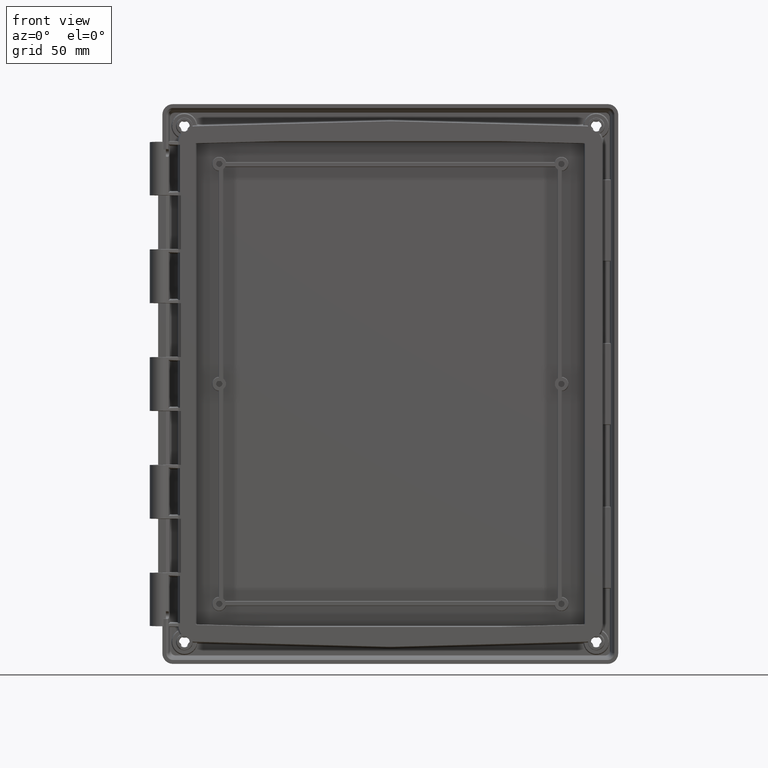
[diagram: clean part render]
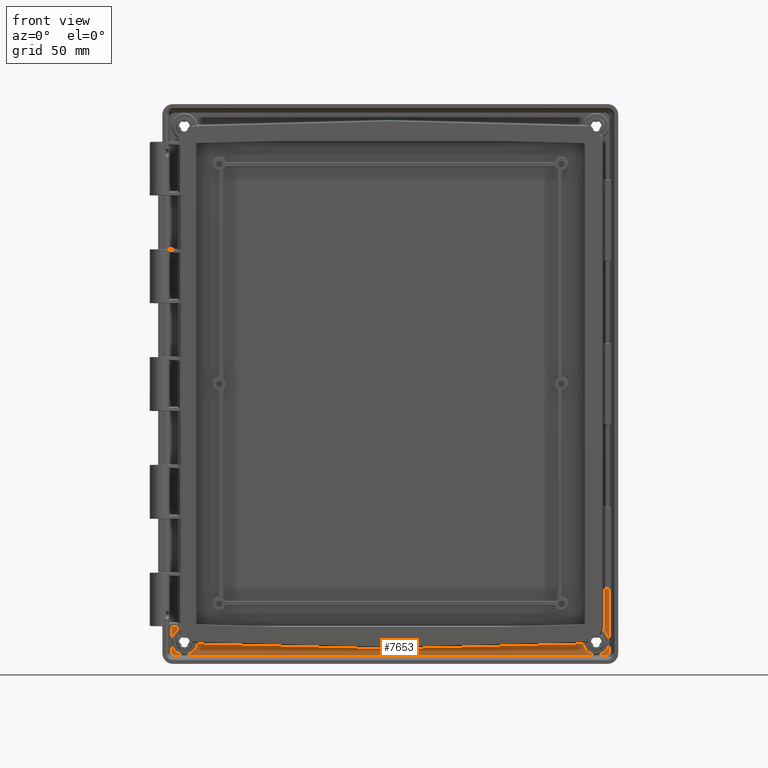
[diagram: same view with one face highlighted and labeled with its STEP entity id]
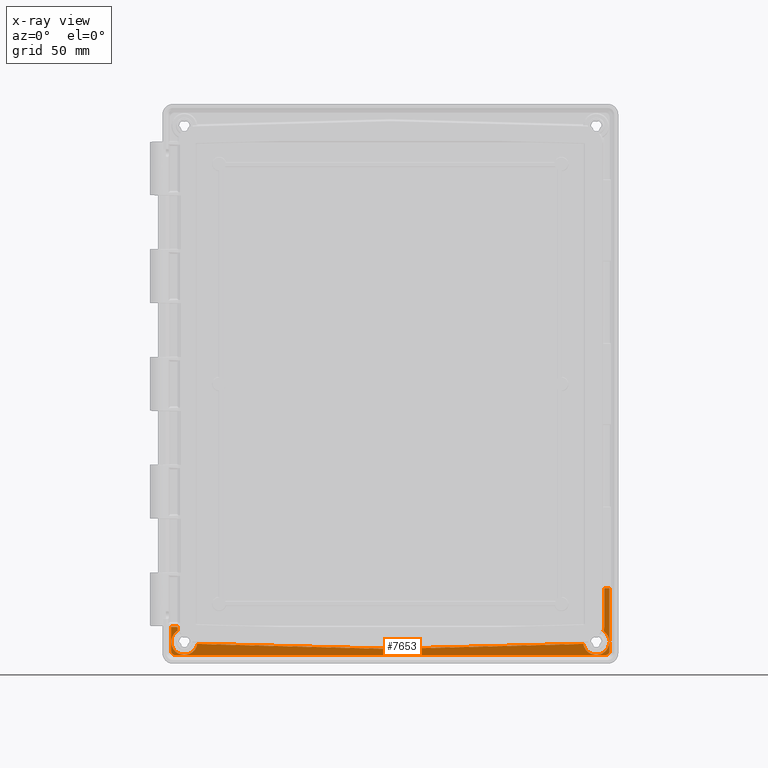
[diagram: x-ray of the same camera — body ghosted, the highlighted face saturated]
A machine part, front view. The second image highlights one B-rep face of the part: STEP entity #7653.
The next image is the same camera in x-ray: the body ghosted, the highlighted face saturated — about 0% of this face is hidden behind the body in this view.
In plain terms, the highlighted planar face has unit normal (0, -1, 0).
Its self-contained STEP definition (entity closure, byte-faithful):
#263=DIRECTION('',(1.028042886248E-13,1.890844213960E-10,1.E0));
#264=VECTOR('',#263,3.262278021325E1);
#265=CARTESIAN_POINT('',(1.138611150675E2,1.259899999383E1,-1.388638559980E2));
#266=LINE('',#265,#264);
#267=CARTESIAN_POINT('',(1.118638559980E2,1.259899999571E1,-1.408611150675E2));
#268=CARTESIAN_POINT('',(1.120793573080E2,1.259899999571E1,-1.408612454352E2));
#269=CARTESIAN_POINT('',(1.124875418561E2,1.259900000193E1,-1.407953485433E2));
#270=CARTESIAN_POINT('',(1.130588304202E2,1.259899999967E1,-1.405062888995E2));
#271=CARTESIAN_POINT('',(1.135068995977E2,1.259899999938E1,-1.400580133197E2));
#272=CARTESIAN_POINT('',(1.137956867992E2,1.259900000282E1,-1.394864146101E2));
#273=CARTESIAN_POINT('',(1.138612184473E2,1.259899999383E1,-1.390788884944E2));
#274=CARTESIAN_POINT('',(1.138611150675E2,1.259899999383E1,-1.388638559980E2));
#276=DIRECTION('',(1.E0,8.393084083756E-12,0.E0));
#277=VECTOR('',#276,2.237277119959E2);
#278=CARTESIAN_POINT('',(-1.118638559980E2,1.259899999383E1,-1.408611150675E2));
#279=LINE('',#278,#277);
#280=CARTESIAN_POINT('',(-1.138611150675E2,1.259899999571E1,-1.388638559980E2));
#281=CARTESIAN_POINT('',(-1.138612454352E2,1.259899999571E1,-1.390793573080E2));
#282=CARTESIAN_POINT('',(-1.137953485433E2,1.259900000193E1,-1.394875418561E2));
#283=CARTESIAN_POINT('',(-1.135062888995E2,1.259899999967E1,-1.400588304202E2));
#284=CARTESIAN_POINT('',(-1.130580133197E2,1.259899999938E1,-1.405068995977E2));
#285=CARTESIAN_POINT('',(-1.124864146101E2,1.259900000282E1,-1.407956867992E2));
#286=CARTESIAN_POINT('',(-1.120788884944E2,1.259899999383E1,-1.408612184473E2));
#287=CARTESIAN_POINT('',(-1.118638559980E2,1.259899999383E1,-1.408611150675E2));
#289=DIRECTION('',(7.755090609898E-14,-3.393478730673E-10,-1.E0));
#290=VECTOR('',#289,1.264393963492E1);
#291=CARTESIAN_POINT('',(-1.138611150675E2,1.2599E1,-1.262199163630E2));
#292=LINE('',#291,#290);
#293=DIRECTION('',(-9.996573249756E-1,0.E0,2.617694830787E-2));
#294=VECTOR('',#293,1.003273839312E2);
#295=CARTESIAN_POINT('',(5.684341886081E-14,1.2599E1,-1.376870745627E2));
#296=LINE('',#295,#294);
#297=DIRECTION('',(-9.996573249756E-1,0.E0,-2.617694830787E-2));
#298=VECTOR('',#297,1.003273839312E2);
#299=CARTESIAN_POINT('',(1.002930042424E2,1.2599E1,-1.350608098197E2));
#300=LINE('',#299,#298);
#301=CARTESIAN_POINT('',(1.111909108263E2,1.259899656501E1,-1.257281951405E2));
#302=CARTESIAN_POINT('',(1.111908181306E2,1.259899189156E1,-1.261854090090E2));
#303=CARTESIAN_POINT('',(1.111238474953E2,1.259900417610E1,-1.270840914536E2));
#304=CARTESIAN_POINT('',(1.109325035805E2,1.259899975625E1,-1.279508197515E2));
#305=CARTESIAN_POINT('',(1.108060413725E2,1.259899956337E1,-1.283765532050E2));
#307=DIRECTION('',(-4.073626998183E-11,-1.762695947214E-7,-1.E0));
#308=VECTOR('',#307,1.948711935580E1);
#309=CARTESIAN_POINT('',(1.111909108271E2,1.2599E1,-1.062410757847E2));
#310=LINE('',#309,#308);
#311=DIRECTION('',(-1.E0,0.E0,0.E0));
#312=VECTOR('',#311,2.670204240363E0);
#313=CARTESIAN_POINT('',(1.138611150675E2,1.2599E1,-1.062410757847E2));
#314=LINE('',#313,#312);
#1443=CARTESIAN_POINT('',(-1.138611150675E2,1.2599E1,-1.262199163630E2));
#1457=DIRECTION('',(9.999999972691E-1,-5.144346811864E-5,5.306072483196E-5));
#1458=VECTOR('',#1457,3.150907256812E0);
#1459=CARTESIAN_POINT('',(-1.138611150675E2,1.2599E1,-1.262199163630E2));
#1460=LINE('',#1459,#1458);
#1517=CARTESIAN_POINT('',(-1.107102078193E2,1.259883790640E1,
-1.262197491736E2));
#1518=CARTESIAN_POINT('',(-1.106988313561E2,1.259883790640E1,
-1.264340975270E2));
#1519=CARTESIAN_POINT('',(-1.106514015287E2,1.259907564368E1,
-1.268607577044E2));
#1520=CARTESIAN_POINT('',(-1.105509905611E2,1.259897838752E1,
-1.274954497412E2));
#1521=CARTESIAN_POINT('',(-1.104503150159E2,1.2599E1,-1.279114339483E2));
#1522=CARTESIAN_POINT('',(-1.103926955184E2,1.2599E1,-1.281179317681E2));
#2698=CARTESIAN_POINT('',(1.138611150675E2,1.2599E1,-1.062410757847E2));
#2731=CARTESIAN_POINT('',(1.07E2,1.2599E1,-1.34E2));
#2732=DIRECTION('',(0.E0,1.E0,0.E0));
#2733=DIRECTION('',(5.605058970929E-1,0.E0,8.281504327863E-1));
#2734=AXIS2_PLACEMENT_3D('',#2731,#2732,#2733);
#2741=CARTESIAN_POINT('',(1.002930042424E2,1.2599E1,-1.350608098197E2));
#3086=CARTESIAN_POINT('',(-1.002930042424E2,1.2599E1,-1.350608098197E2));
#3093=CARTESIAN_POINT('',(-1.07E2,1.2599E1,-1.34E2));
#3094=DIRECTION('',(0.E0,1.E0,0.E0));
#3095=DIRECTION('',(9.877218562427E-1,0.E0,-1.562227086581E-1));
#3096=AXIS2_PLACEMENT_3D('',#3093,#3094,#3095);
#6263=CARTESIAN_POINT('',(-1.107102078193E2,1.259883790640E1,
-1.262197491736E2));
#6264=VERTEX_POINT('',#6263);
#6368=VERTEX_POINT('',#1522);
#6622=VERTEX_POINT('',#267);
#6623=VERTEX_POINT('',#274);
#6626=CARTESIAN_POINT('',(-1.118638559980E2,1.259899999383E1,
-1.408611150675E2));
#6627=VERTEX_POINT('',#6626);
#6629=VERTEX_POINT('',#280);
#6631=VERTEX_POINT('',#1443);
#6665=VERTEX_POINT('',#2741);
#6666=CARTESIAN_POINT('',(5.684341886081E-14,1.2599E1,-1.376870745627E2));
#6667=VERTEX_POINT('',#6666);
#6670=VERTEX_POINT('',#3086);
#6682=CARTESIAN_POINT('',(1.108060418023E2,1.2599E1,-1.283765530709E2));
#6683=VERTEX_POINT('',#6682);
#6784=VERTEX_POINT('',#2698);
#6788=CARTESIAN_POINT('',(1.111909108271E2,1.2599E1,-1.062410757847E2));
#6789=VERTEX_POINT('',#6788);
#6816=VERTEX_POINT('',#301);
#7618=CARTESIAN_POINT('',(-1.176856057321E2,1.2599E1,-1.439518968221E2));
#7619=DIRECTION('',(0.E0,-1.E0,0.E0));
#7620=DIRECTION('',(1.E0,0.E0,0.E0));
#7621=AXIS2_PLACEMENT_3D('',#7618,#7619,#7620);
#7622=PLANE('',#7621);
#7624=ORIENTED_EDGE('',*,*,#7623,.F.);
#7626=ORIENTED_EDGE('',*,*,#7625,.F.);
#7628=ORIENTED_EDGE('',*,*,#7627,.F.);
#7630=ORIENTED_EDGE('',*,*,#7629,.F.);
#7632=ORIENTED_EDGE('',*,*,#7631,.F.);
#7634=ORIENTED_EDGE('',*,*,#7633,.T.);
#7636=ORIENTED_EDGE('',*,*,#7635,.T.);
#7638=ORIENTED_EDGE('',*,*,#7637,.F.);
#7640=ORIENTED_EDGE('',*,*,#7639,.F.);
#7642=ORIENTED_EDGE('',*,*,#7641,.F.);
#7644=ORIENTED_EDGE('',*,*,#7643,.F.);
#7646=ORIENTED_EDGE('',*,*,#7645,.F.);
#7648=ORIENTED_EDGE('',*,*,#7647,.F.);
#7650=ORIENTED_EDGE('',*,*,#7649,.F.);
#7651=EDGE_LOOP('',(#7624,#7626,#7628,#7630,#7632,#7634,#7636,#7638,#7640,#7642,
#7644,#7646,#7648,#7650));
#7652=FACE_OUTER_BOUND('',#7651,.F.);
#7653=ADVANCED_FACE('',(#7652),#7622,.T.);
#275=B_SPLINE_CURVE_WITH_KNOTS('',3,(#267,#268,#269,#270,#271,#272,#273,#274),
.UNSPECIFIED.,.F.,.F.,(4,1,1,1,1,4),(0.E0,2.E-1,4.E-1,6.E-1,8.E-1,1.E0),
.UNSPECIFIED.);
#288=B_SPLINE_CURVE_WITH_KNOTS('',3,(#280,#281,#282,#283,#284,#285,#286,#287),
.UNSPECIFIED.,.F.,.F.,(4,1,1,1,1,4),(0.E0,2.E-1,4.E-1,6.E-1,8.E-1,1.E0),
.UNSPECIFIED.);
#306=B_SPLINE_CURVE_WITH_KNOTS('',3,(#301,#302,#303,#304,#305),.UNSPECIFIED.,
.F.,.F.,(4,1,4),(0.E0,5.E-1,1.E0),.UNSPECIFIED.);
#1523=B_SPLINE_CURVE_WITH_KNOTS('',3,(#1517,#1518,#1519,#1520,#1521,#1522),
.UNSPECIFIED.,.F.,.F.,(4,1,1,4),(0.E0,3.333333333333E-1,6.666666666667E-1,1.E0),
.UNSPECIFIED.);
#2735=CIRCLE('',#2734,6.790368882868E0);
#3097=CIRCLE('',#3096,6.790368882868E0);
#7623=EDGE_CURVE('',#6623,#6784,#266,.T.);
#7625=EDGE_CURVE('',#6622,#6623,#275,.T.);
#7627=EDGE_CURVE('',#6627,#6622,#279,.T.);
#7629=EDGE_CURVE('',#6629,#6627,#288,.T.);
#7631=EDGE_CURVE('',#6631,#6629,#292,.T.);
#7633=EDGE_CURVE('',#6631,#6264,#1460,.T.);
#7635=EDGE_CURVE('',#6264,#6368,#1523,.T.);
#7637=EDGE_CURVE('',#6670,#6368,#3097,.T.);
#7639=EDGE_CURVE('',#6667,#6670,#296,.T.);
#7641=EDGE_CURVE('',#6665,#6667,#300,.T.);
#7643=EDGE_CURVE('',#6683,#6665,#2735,.T.);
#7645=EDGE_CURVE('',#6816,#6683,#306,.T.);
#7647=EDGE_CURVE('',#6789,#6816,#310,.T.);
#7649=EDGE_CURVE('',#6784,#6789,#314,.T.);